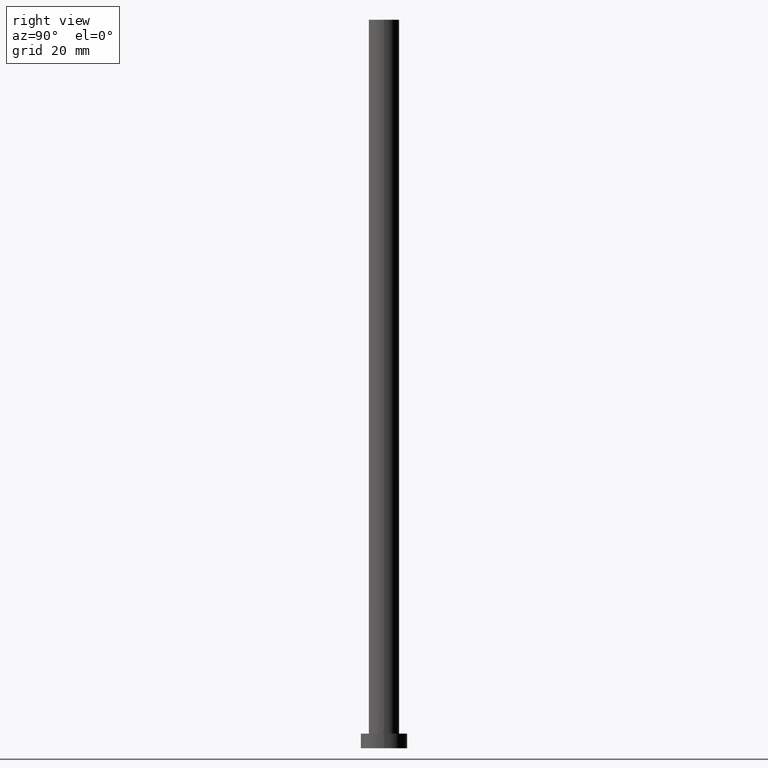
[diagram: clean part render]
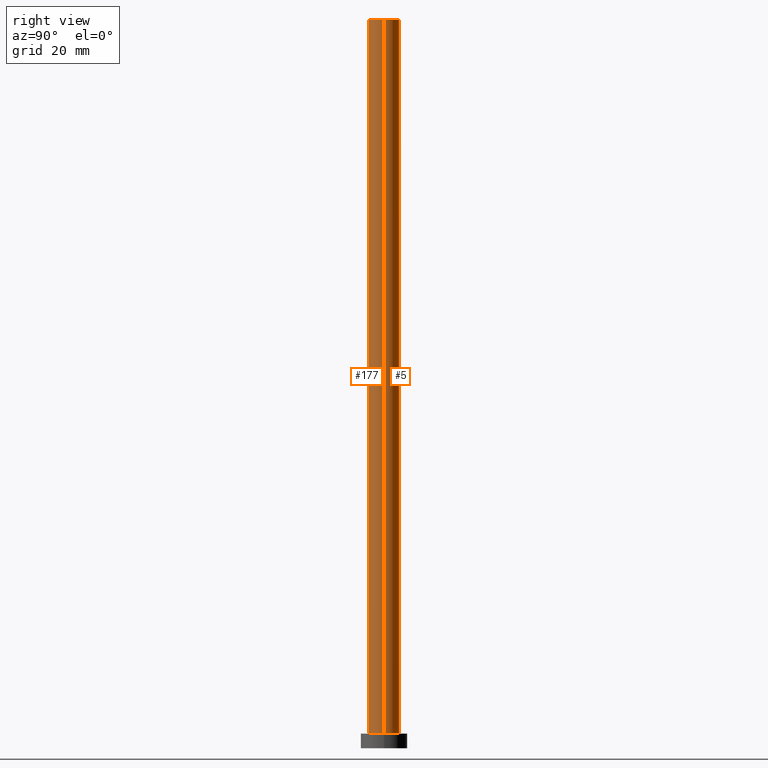
[diagram: same view with one multi-face feature highlighted, each face labeled with its STEP entity id]
A machine part, right view. The highlighted faces form ONE feature: a constant-radius fillet chain: 2 tangent blend faces with common blend radius 5.25 mm. The faces share edges in the B-rep.
Their STEP definitions:
[1] entity #177 (Cylinder):
#9 = DIRECTION ( 'NONE',  ( -0.000000000000000000, -0.000000000000000000, -1.000000000000000000 ) ) ;
#19 = CARTESIAN_POINT ( 'NONE',  ( 5.250000000000000888, 6.429395695523605139E-16, 250.0000000000000000 ) ) ;
#20 = DIRECTION ( 'NONE',  ( 0.000000000000000000, 0.000000000000000000, 1.000000000000000000 ) ) ;
#23 = LINE ( 'NONE', #247, #200 ) ;
#31 = EDGE_LOOP ( 'NONE', ( #193, #120, #155, #38 ) ) ;
#34 = FACE_OUTER_BOUND ( 'NONE', #31, .T. ) ;
#36 = VERTEX_POINT ( 'NONE', #130 ) ;
#38 = ORIENTED_EDGE ( 'NONE', *, *, #173, .T. ) ;
#50 = CIRCLE ( 'NONE', #90, 5.250000000000000888 ) ;
#65 = DIRECTION ( 'NONE',  ( -0.000000000000000000, -0.000000000000000000, -1.000000000000000000 ) ) ;
#67 = DIRECTION ( 'NONE',  ( 1.000000000000000000, 0.000000000000000000, 0.000000000000000000 ) ) ;
#87 = DIRECTION ( 'NONE',  ( -1.000000000000000000, 0.000000000000000000, 0.000000000000000000 ) ) ;
#90 = AXIS2_PLACEMENT_3D ( 'NONE', #205, #20, #221 ) ;
#95 = VERTEX_POINT ( 'NONE', #103 ) ;
#100 = CARTESIAN_POINT ( 'NONE',  ( 0.000000000000000000, 0.000000000000000000, 250.0000000000000000 ) ) ;
#103 = CARTESIAN_POINT ( 'NONE',  ( 5.250000000000000888, 6.429395695523605139E-16, 5.000000000000000000 ) ) ;
#120 = ORIENTED_EDGE ( 'NONE', *, *, #232, .F. ) ;
#122 = CYLINDRICAL_SURFACE ( 'NONE', #125, 5.250000000000000888 ) ;
#125 = AXIS2_PLACEMENT_3D ( 'NONE', #100, #9, #87 ) ;
#130 = CARTESIAN_POINT ( 'NONE',  ( -5.250000000000000888, 0.000000000000000000, 250.0000000000000000 ) ) ;
#141 = VERTEX_POINT ( 'NONE', #19 ) ;
#149 = LINE ( 'NONE', #187, #224 ) ;
#154 = VERTEX_POINT ( 'NONE', #238 ) ;
#155 = ORIENTED_EDGE ( 'NONE', *, *, #240, .T. ) ;
#173 = EDGE_CURVE ( 'NONE', #154, #95, #50, .T. ) ;
#177 = ADVANCED_FACE ( 'NONE', ( #34 ), #122, .T. ) ;
#187 = CARTESIAN_POINT ( 'NONE',  ( 5.250000000000000888, 6.429395695523605139E-16, 250.0000000000000000 ) ) ;
#192 = EDGE_CURVE ( 'NONE', #141, #95, #149, .T. ) ;
#193 = ORIENTED_EDGE ( 'NONE', *, *, #192, .F. ) ;
#196 = AXIS2_PLACEMENT_3D ( 'NONE', #208, #213, #67 ) ;
#200 = VECTOR ( 'NONE', #65, 1000.000000000000000 ) ;
#205 = CARTESIAN_POINT ( 'NONE',  ( 0.000000000000000000, 0.000000000000000000, 5.000000000000000000 ) ) ;
#208 = CARTESIAN_POINT ( 'NONE',  ( 0.000000000000000000, 0.000000000000000000, 250.0000000000000000 ) ) ;
#209 = CIRCLE ( 'NONE', #196, 5.250000000000000888 ) ;
#213 = DIRECTION ( 'NONE',  ( 0.000000000000000000, 0.000000000000000000, 1.000000000000000000 ) ) ;
#221 = DIRECTION ( 'NONE',  ( 1.000000000000000000, 0.000000000000000000, 0.000000000000000000 ) ) ;
#224 = VECTOR ( 'NONE', #228, 1000.000000000000000 ) ;
#228 = DIRECTION ( 'NONE',  ( -0.000000000000000000, -0.000000000000000000, -1.000000000000000000 ) ) ;
#232 = EDGE_CURVE ( 'NONE', #36, #141, #209, .T. ) ;
#238 = CARTESIAN_POINT ( 'NONE',  ( -5.250000000000000888, 0.000000000000000000, 5.000000000000000000 ) ) ;
#240 = EDGE_CURVE ( 'NONE', #36, #154, #23, .T. ) ;
#247 = CARTESIAN_POINT ( 'NONE',  ( -5.250000000000000888, 0.000000000000000000, 250.0000000000000000 ) ) ;
[2] entity #5 (Cylinder):
#5 = ADVANCED_FACE ( 'NONE', ( #60 ), #212, .T. ) ;
#18 = DIRECTION ( 'NONE',  ( 1.000000000000000000, 0.000000000000000000, 0.000000000000000000 ) ) ;
#19 = CARTESIAN_POINT ( 'NONE',  ( 5.250000000000000888, 6.429395695523605139E-16, 250.0000000000000000 ) ) ;
#23 = LINE ( 'NONE', #247, #200 ) ;
#24 = CARTESIAN_POINT ( 'NONE',  ( 0.000000000000000000, 0.000000000000000000, 250.0000000000000000 ) ) ;
#36 = VERTEX_POINT ( 'NONE', #130 ) ;
#40 = DIRECTION ( 'NONE',  ( 0.000000000000000000, 0.000000000000000000, 1.000000000000000000 ) ) ;
#45 = CARTESIAN_POINT ( 'NONE',  ( 0.000000000000000000, 0.000000000000000000, 5.000000000000000000 ) ) ;
#60 = FACE_OUTER_BOUND ( 'NONE', #146, .T. ) ;
#63 = DIRECTION ( 'NONE',  ( -0.000000000000000000, -0.000000000000000000, -1.000000000000000000 ) ) ;
#65 = DIRECTION ( 'NONE',  ( -0.000000000000000000, -0.000000000000000000, -1.000000000000000000 ) ) ;
#68 = AXIS2_PLACEMENT_3D ( 'NONE', #45, #206, #245 ) ;
#83 = EDGE_CURVE ( 'NONE', #95, #154, #207, .T. ) ;
#95 = VERTEX_POINT ( 'NONE', #103 ) ;
#99 = ORIENTED_EDGE ( 'NONE', *, *, #240, .F. ) ;
#101 = CARTESIAN_POINT ( 'NONE',  ( 0.000000000000000000, 0.000000000000000000, 250.0000000000000000 ) ) ;
#103 = CARTESIAN_POINT ( 'NONE',  ( 5.250000000000000888, 6.429395695523605139E-16, 5.000000000000000000 ) ) ;
#107 = DIRECTION ( 'NONE',  ( -1.000000000000000000, 0.000000000000000000, 0.000000000000000000 ) ) ;
#130 = CARTESIAN_POINT ( 'NONE',  ( -5.250000000000000888, 0.000000000000000000, 250.0000000000000000 ) ) ;
#136 = EDGE_CURVE ( 'NONE', #141, #36, #161, .T. ) ;
#141 = VERTEX_POINT ( 'NONE', #19 ) ;
#146 = EDGE_LOOP ( 'NONE', ( #217, #249, #231, #99 ) ) ;
#149 = LINE ( 'NONE', #187, #224 ) ;
#154 = VERTEX_POINT ( 'NONE', #238 ) ;
#161 = CIRCLE ( 'NONE', #188, 5.250000000000000888 ) ;
#184 = AXIS2_PLACEMENT_3D ( 'NONE', #24, #63, #107 ) ;
#187 = CARTESIAN_POINT ( 'NONE',  ( 5.250000000000000888, 6.429395695523605139E-16, 250.0000000000000000 ) ) ;
#188 = AXIS2_PLACEMENT_3D ( 'NONE', #101, #40, #18 ) ;
#192 = EDGE_CURVE ( 'NONE', #141, #95, #149, .T. ) ;
#200 = VECTOR ( 'NONE', #65, 1000.000000000000000 ) ;
#206 = DIRECTION ( 'NONE',  ( 0.000000000000000000, 0.000000000000000000, 1.000000000000000000 ) ) ;
#207 = CIRCLE ( 'NONE', #68, 5.250000000000000888 ) ;
#212 = CYLINDRICAL_SURFACE ( 'NONE', #184, 5.250000000000000888 ) ;
#217 = ORIENTED_EDGE ( 'NONE', *, *, #136, .F. ) ;
#224 = VECTOR ( 'NONE', #228, 1000.000000000000000 ) ;
#228 = DIRECTION ( 'NONE',  ( -0.000000000000000000, -0.000000000000000000, -1.000000000000000000 ) ) ;
#231 = ORIENTED_EDGE ( 'NONE', *, *, #83, .T. ) ;
#238 = CARTESIAN_POINT ( 'NONE',  ( -5.250000000000000888, 0.000000000000000000, 5.000000000000000000 ) ) ;
#240 = EDGE_CURVE ( 'NONE', #36, #154, #23, .T. ) ;
#245 = DIRECTION ( 'NONE',  ( 1.000000000000000000, 0.000000000000000000, 0.000000000000000000 ) ) ;
#247 = CARTESIAN_POINT ( 'NONE',  ( -5.250000000000000888, 0.000000000000000000, 250.0000000000000000 ) ) ;
#249 = ORIENTED_EDGE ( 'NONE', *, *, #192, .T. ) ;